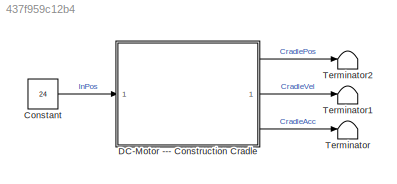
MODEL slx_437f959c12b4
KIND model
CONFIG AbsTol = auto
CONFIG EnableMultiTasking = off
CONFIG FixedStep = 1e-3
CONFIG MaxStep = auto
CONFIG MinStep = auto
CONFIG RelTol = 1e-3
CONFIG SampleTimeConstraint = Unconstrained
CONFIG SolverName = ode1be
CONFIG StartTime = 0.0
CONFIG StopTime = 10
BLOCK [Constant] Constant
  Value = 24
BLOCK [SubSystem] DC-Motor --- Construction Cradle
  J_gear = 2.4e-9
  J_motor = 500e-9
  L = 300e-6
  R = 8.5
  ReferencedSubsystem = ControlObject
  cradle_mass = 5
  i_gear = 200
  km = 17e-1
  kw = 17e-2
  motor_nominal_voltage = 24
  r_cyl = 0.3
  vis_friction_coef_cradle = 0.001
  vis_friction_coef_gear = 0.001
  vis_friction_coef_motor = 0.001
BLOCK [Terminator] Terminator
BLOCK [Terminator] Terminator1
BLOCK [Terminator] Terminator2
LINE Constant:1 -> DC-Motor --- Construction Cradle:1
LINE DC-Motor --- Construction Cradle:1 -> Terminator2:1
LINE DC-Motor --- Construction Cradle:2 -> Terminator1:1
LINE DC-Motor --- Construction Cradle:3 -> Terminator:1
